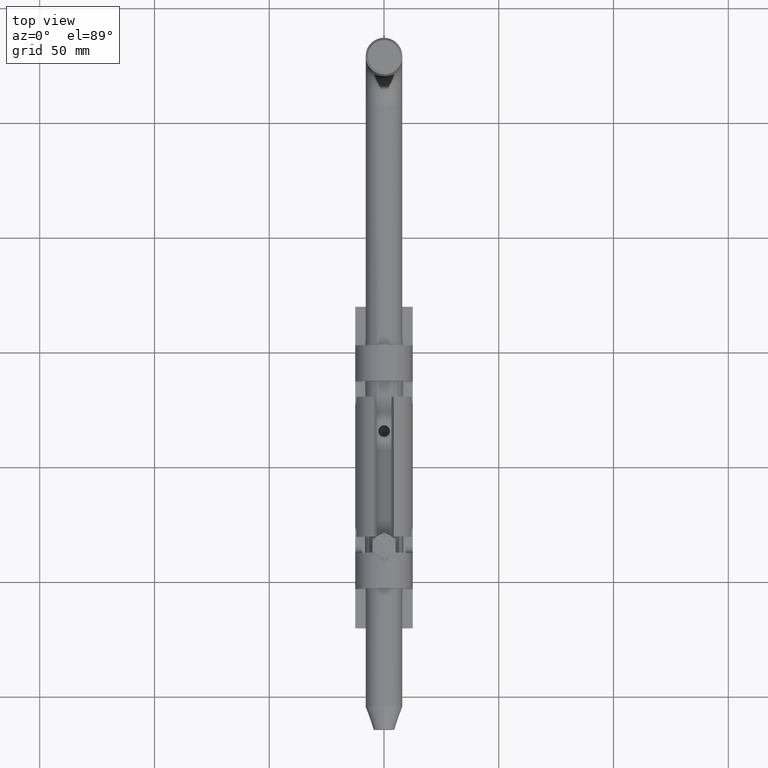
[diagram: clean part render]
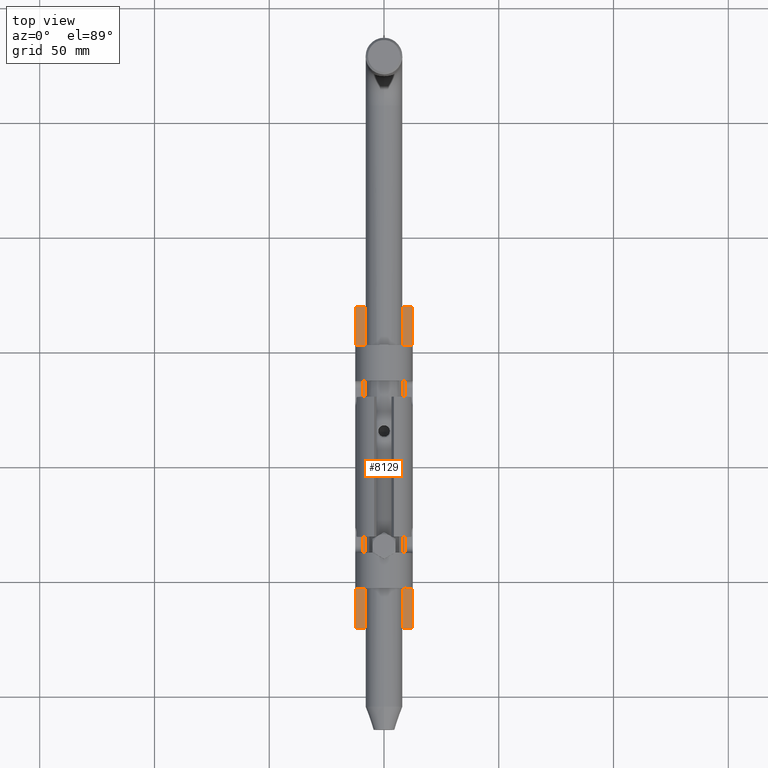
[diagram: same view with one face highlighted and labeled with its STEP entity id]
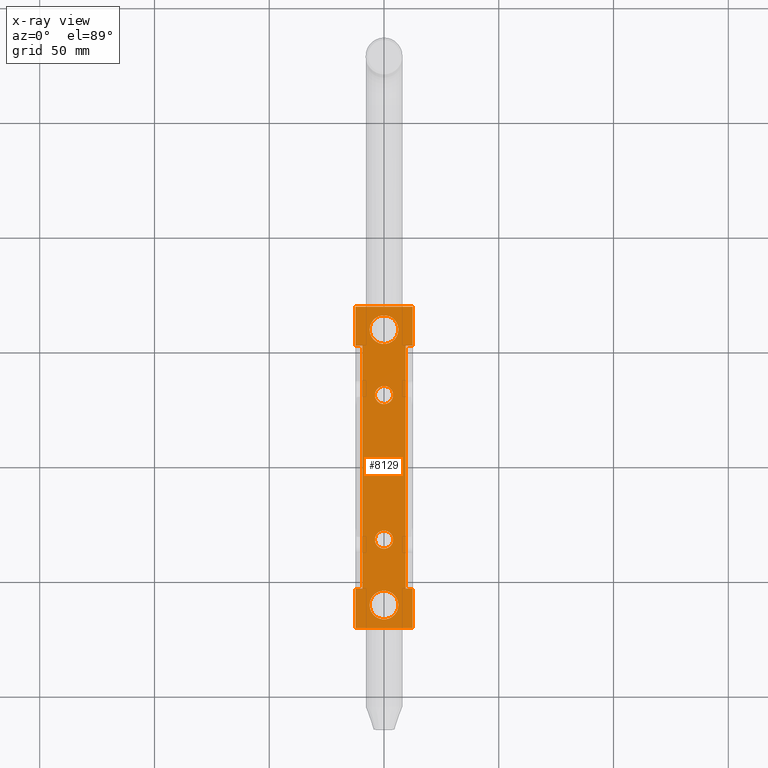
[diagram: x-ray of the same camera — body ghosted, the highlighted face saturated]
A machine part, top view. The second image highlights one B-rep face of the part: STEP entity #8129.
The next image is the same camera in x-ray: the body ghosted, the highlighted face saturated — about 0% of this face is hidden behind the body in this view.
In plain terms, the highlighted planar face has unit normal (0, 0, 1).
Its self-contained STEP definition (entity closure, byte-faithful):
#146 = EDGE_CURVE ( 'NONE', #6665, #9066, #6871, .T. ) ;
#241 = DIRECTION ( 'NONE',  ( 1.000000000000000000, 0.000000000000000000, 0.000000000000000000 ) ) ;
#262 = ORIENTED_EDGE ( 'NONE', *, *, #9063, .T. ) ;
#285 = AXIS2_PLACEMENT_3D ( 'NONE', #21432, #4945, #14725 ) ;
#367 = ORIENTED_EDGE ( 'NONE', *, *, #1174, .T. ) ;
#377 = EDGE_LOOP ( 'NONE', ( #18042, #367 ) ) ;
#427 = EDGE_CURVE ( 'NONE', #3274, #6665, #12328, .T. ) ;
#700 = ORIENTED_EDGE ( 'NONE', *, *, #17880, .F. ) ;
#1060 = DIRECTION ( 'NONE',  ( 0.000000000000000000, -1.000000000000000000, 0.000000000000000000 ) ) ;
#1115 = CARTESIAN_POINT ( 'NONE',  ( -12.50000000000001066, 70.00000000000000000, 2.000000000000000000 ) ) ;
#1174 = EDGE_CURVE ( 'NONE', #9998, #4254, #10496, .T. ) ;
#1187 = VERTEX_POINT ( 'NONE', #10945 ) ;
#1198 = EDGE_CURVE ( 'NONE', #7573, #4545, #8168, .T. ) ;
#1331 = CARTESIAN_POINT ( 'NONE',  ( -9.500000000000012434, 0.000000000000000000, 2.000000000000000000 ) ) ;
#1430 = DIRECTION ( 'NONE',  ( -1.239088197126290570E-16, 1.000000000000000000, -0.000000000000000000 ) ) ;
#1439 = VECTOR ( 'NONE', #3892, 1000.000000000000000 ) ;
#1532 = ORIENTED_EDGE ( 'NONE', *, *, #1198, .T. ) ;
#1754 = ORIENTED_EDGE ( 'NONE', *, *, #6185, .T. ) ;
#1790 = DIRECTION ( 'NONE',  ( 1.000000000000000000, 0.000000000000000000, 0.000000000000000000 ) ) ;
#1986 = CARTESIAN_POINT ( 'NONE',  ( -12.49999999999999467, -52.99999999999999289, 2.000000000000000000 ) ) ;
#2035 = VECTOR ( 'NONE', #9616, 1000.000000000000000 ) ;
#2084 = VERTEX_POINT ( 'NONE', #5402 ) ;
#2108 = AXIS2_PLACEMENT_3D ( 'NONE', #5592, #13924, #241 ) ;
#2171 = CIRCLE ( 'NONE', #10592, 6.250000000000000000 ) ;
#2241 = FACE_BOUND ( 'NONE', #6705, .T. ) ;
#2245 = VERTEX_POINT ( 'NONE', #7766 ) ;
#2267 = CARTESIAN_POINT ( 'NONE',  ( 0.000000000000000000, 31.50000000000000000, 2.000000000000000000 ) ) ;
#2645 = EDGE_CURVE ( 'NONE', #17602, #11563, #20807, .T. ) ;
#2684 = ORIENTED_EDGE ( 'NONE', *, *, #2862, .F. ) ;
#2783 = CARTESIAN_POINT ( 'NONE',  ( 12.50000000000000711, -70.00000000000000000, 2.000000000000000000 ) ) ;
#2789 = VERTEX_POINT ( 'NONE', #17837 ) ;
#2795 = LINE ( 'NONE', #19517, #2035 ) ;
#2862 = EDGE_CURVE ( 'NONE', #2084, #2789, #2171, .T. ) ;
#3175 = ORIENTED_EDGE ( 'NONE', *, *, #7008, .T. ) ;
#3192 = CARTESIAN_POINT ( 'NONE',  ( 12.49999999999999112, 70.00000000000000000, 2.000000000000000000 ) ) ;
#3274 = VERTEX_POINT ( 'NONE', #1986 ) ;
#3373 = EDGE_CURVE ( 'NONE', #5078, #12057, #4507, .T. ) ;
#3392 = CIRCLE ( 'NONE', #11489, 3.949999999999993516 ) ;
#3668 = VECTOR ( 'NONE', #9359, 1000.000000000000000 ) ;
#3762 = VECTOR ( 'NONE', #1060, 1000.000000000000000 ) ;
#3892 = DIRECTION ( 'NONE',  ( -1.000000000000000000, 0.000000000000000000, -0.000000000000000000 ) ) ;
#3961 = CARTESIAN_POINT ( 'NONE',  ( 0.000000000000000000, 53.00000000000000000, 2.000000000000000000 ) ) ;
#3995 = EDGE_CURVE ( 'NONE', #4254, #9998, #10340, .T. ) ;
#4027 = LINE ( 'NONE', #21082, #16947 ) ;
#4254 = VERTEX_POINT ( 'NONE', #16933 ) ;
#4255 = CARTESIAN_POINT ( 'NONE',  ( -12.50000000000001066, 70.00000000000000000, 2.000000000000000000 ) ) ;
#4366 = DIRECTION ( 'NONE',  ( 1.000000000000000000, 0.000000000000000000, 0.000000000000000000 ) ) ;
#4507 = CIRCLE ( 'NONE', #5127, 3.949999999999993516 ) ;
#4545 = VERTEX_POINT ( 'NONE', #17725 ) ;
#4732 = VECTOR ( 'NONE', #7353, 1000.000000000000000 ) ;
#4945 = DIRECTION ( 'NONE',  ( 0.000000000000000000, -0.000000000000000000, -1.000000000000000000 ) ) ;
#5078 = VERTEX_POINT ( 'NONE', #14424 ) ;
#5127 = AXIS2_PLACEMENT_3D ( 'NONE', #2267, #8918, #5810 ) ;
#5242 = LINE ( 'NONE', #4255, #10682 ) ;
#5402 = CARTESIAN_POINT ( 'NONE',  ( -6.250000000000000000, 60.00000000000000000, 2.000000000000000888 ) ) ;
#5592 = CARTESIAN_POINT ( 'NONE',  ( 0.000000000000000000, -60.00000000000000000, 2.000000000000000888 ) ) ;
#5597 = VECTOR ( 'NONE', #20181, 1000.000000000000000 ) ;
#5628 = VECTOR ( 'NONE', #8067, 1000.000000000000000 ) ;
#5632 = ORIENTED_EDGE ( 'NONE', *, *, #2645, .T. ) ;
#5647 = EDGE_CURVE ( 'NONE', #2245, #18710, #2795, .T. ) ;
#5810 = DIRECTION ( 'NONE',  ( 1.000000000000000000, 0.000000000000000000, 0.000000000000000000 ) ) ;
#5943 = DIRECTION ( 'NONE',  ( 1.239088197126290570E-16, -1.000000000000000000, 0.000000000000000000 ) ) ;
#5974 = DIRECTION ( 'NONE',  ( 1.000000000000000000, 0.000000000000000000, 0.000000000000000000 ) ) ;
#6185 = EDGE_CURVE ( 'NONE', #8229, #14675, #7693, .T. ) ;
#6279 = LINE ( 'NONE', #17266, #4732 ) ;
#6515 = EDGE_LOOP ( 'NONE', ( #15714, #2684 ) ) ;
#6646 = FACE_BOUND ( 'NONE', #6515, .T. ) ;
#6665 = VERTEX_POINT ( 'NONE', #20153 ) ;
#6705 = EDGE_LOOP ( 'NONE', ( #700, #20945 ) ) ;
#6871 = LINE ( 'NONE', #11956, #5597 ) ;
#7008 = EDGE_CURVE ( 'NONE', #14675, #19465, #14444, .T. ) ;
#7353 = DIRECTION ( 'NONE',  ( -1.000000000000000000, 0.000000000000000000, -0.000000000000000000 ) ) ;
#7403 = FACE_BOUND ( 'NONE', #10662, .T. ) ;
#7554 = DIRECTION ( 'NONE',  ( -0.000000000000000000, 0.000000000000000000, 1.000000000000000000 ) ) ;
#7573 = VERTEX_POINT ( 'NONE', #20605 ) ;
#7693 = LINE ( 'NONE', #9374, #15728 ) ;
#7713 = AXIS2_PLACEMENT_3D ( 'NONE', #8352, #15085, #1790 ) ;
#7766 = CARTESIAN_POINT ( 'NONE',  ( 12.49999999999999112, 53.00000000000000000, 2.000000000000000000 ) ) ;
#8067 = DIRECTION ( 'NONE',  ( 0.000000000000000000, 1.000000000000000000, 0.000000000000000000 ) ) ;
#8129 = ADVANCED_FACE ( 'NONE', ( #11056, #7403, #6646, #2241, #21136 ), #17473, .T. ) ;
#8168 = LINE ( 'NONE', #1331, #3762 ) ;
#8229 = VERTEX_POINT ( 'NONE', #19491 ) ;
#8258 = CARTESIAN_POINT ( 'NONE',  ( 6.250000000000000000, -60.00000000000000000, 2.000000000000000888 ) ) ;
#8352 = CARTESIAN_POINT ( 'NONE',  ( 0.000000000000000000, -60.00000000000000000, 2.000000000000000888 ) ) ;
#8918 = DIRECTION ( 'NONE',  ( 0.000000000000000000, -0.000000000000000000, -1.000000000000000000 ) ) ;
#9063 = EDGE_CURVE ( 'NONE', #9066, #8229, #4027, .T. ) ;
#9066 = VERTEX_POINT ( 'NONE', #2783 ) ;
#9121 = DIRECTION ( 'NONE',  ( 0.000000000000000000, -0.000000000000000000, -1.000000000000000000 ) ) ;
#9359 = DIRECTION ( 'NONE',  ( -1.000000000000000000, 0.000000000000000000, -0.000000000000000000 ) ) ;
#9374 = CARTESIAN_POINT ( 'NONE',  ( 0.000000000000000000, -53.00000000000000000, 2.000000000000000000 ) ) ;
#9435 = CARTESIAN_POINT ( 'NONE',  ( 0.000000000000000000, -53.00000000000000000, 2.000000000000000000 ) ) ;
#9616 = DIRECTION ( 'NONE',  ( -1.239088197126290570E-16, 1.000000000000000000, -0.000000000000000000 ) ) ;
#9704 = EDGE_LOOP ( 'NONE', ( #11218, #17212, #18332, #5632, #13044, #1532, #14094, #15878, #17771, #262, #1754, #3175 ) ) ;
#9853 = EDGE_CURVE ( 'NONE', #2245, #19465, #10220, .T. ) ;
#9893 = CARTESIAN_POINT ( 'NONE',  ( -3.949999999999993516, -31.50000000000000000, 2.000000000000000000 ) ) ;
#9998 = VERTEX_POINT ( 'NONE', #9893 ) ;
#10220 = LINE ( 'NONE', #3961, #1439 ) ;
#10340 = CIRCLE ( 'NONE', #285, 3.949999999999993516 ) ;
#10496 = CIRCLE ( 'NONE', #16546, 3.949999999999993516 ) ;
#10592 = AXIS2_PLACEMENT_3D ( 'NONE', #13225, #21375, #11492 ) ;
#10662 = EDGE_LOOP ( 'NONE', ( #17145, #13365 ) ) ;
#10682 = VECTOR ( 'NONE', #10693, 1000.000000000000000 ) ;
#10693 = DIRECTION ( 'NONE',  ( -1.000000000000000000, -0.000000000000000000, -0.000000000000000000 ) ) ;
#10761 = EDGE_CURVE ( 'NONE', #1187, #20117, #15897, .T. ) ;
#10945 = CARTESIAN_POINT ( 'NONE',  ( -6.250000000000000000, -60.00000000000000000, 2.000000000000000888 ) ) ;
#11056 = FACE_BOUND ( 'NONE', #377, .T. ) ;
#11126 = DIRECTION ( 'NONE',  ( 1.000000000000000000, 0.000000000000000000, 0.000000000000000000 ) ) ;
#11218 = ORIENTED_EDGE ( 'NONE', *, *, #9853, .F. ) ;
#11489 = AXIS2_PLACEMENT_3D ( 'NONE', #15813, #17620, #11126 ) ;
#11492 = DIRECTION ( 'NONE',  ( 1.000000000000000000, 0.000000000000000000, 0.000000000000000000 ) ) ;
#11537 = AXIS2_PLACEMENT_3D ( 'NONE', #17252, #7554, #5974 ) ;
#11563 = VERTEX_POINT ( 'NONE', #18461 ) ;
#11814 = VECTOR ( 'NONE', #5943, 1000.000000000000000 ) ;
#11956 = CARTESIAN_POINT ( 'NONE',  ( -12.49999999999999289, -70.00000000000000000, 2.000000000000000000 ) ) ;
#12057 = VERTEX_POINT ( 'NONE', #19106 ) ;
#12234 = LINE ( 'NONE', #9435, #3668 ) ;
#12328 = LINE ( 'NONE', #1115, #11814 ) ;
#12928 = CARTESIAN_POINT ( 'NONE',  ( 0.000000000000000000, 60.00000000000000000, 2.000000000000000888 ) ) ;
#12990 = EDGE_CURVE ( 'NONE', #4545, #3274, #12234, .T. ) ;
#13044 = ORIENTED_EDGE ( 'NONE', *, *, #17626, .F. ) ;
#13225 = CARTESIAN_POINT ( 'NONE',  ( 0.000000000000000000, 60.00000000000000000, 2.000000000000000888 ) ) ;
#13355 = CARTESIAN_POINT ( 'NONE',  ( 9.500000000000003553, 0.000000000000000000, 2.000000000000000000 ) ) ;
#13365 = ORIENTED_EDGE ( 'NONE', *, *, #19030, .T. ) ;
#13813 = DIRECTION ( 'NONE',  ( 1.239088197126290570E-16, -1.000000000000000000, 0.000000000000000000 ) ) ;
#13924 = DIRECTION ( 'NONE',  ( -0.000000000000000000, -0.000000000000000000, 1.000000000000000000 ) ) ;
#14094 = ORIENTED_EDGE ( 'NONE', *, *, #12990, .T. ) ;
#14424 = CARTESIAN_POINT ( 'NONE',  ( 3.949999999999993516, 31.50000000000000000, 2.000000000000000000 ) ) ;
#14444 = LINE ( 'NONE', #13355, #5628 ) ;
#14675 = VERTEX_POINT ( 'NONE', #21118 ) ;
#14725 = DIRECTION ( 'NONE',  ( 1.000000000000000000, 0.000000000000000000, 0.000000000000000000 ) ) ;
#15085 = DIRECTION ( 'NONE',  ( -0.000000000000000000, -0.000000000000000000, 1.000000000000000000 ) ) ;
#15087 = CARTESIAN_POINT ( 'NONE',  ( 9.500000000000003553, 53.00000000000000000, 2.000000000000000000 ) ) ;
#15385 = CARTESIAN_POINT ( 'NONE',  ( -12.50000000000001066, 70.00000000000000000, 2.000000000000000000 ) ) ;
#15714 = ORIENTED_EDGE ( 'NONE', *, *, #21150, .F. ) ;
#15728 = VECTOR ( 'NONE', #21167, 1000.000000000000000 ) ;
#15741 = CARTESIAN_POINT ( 'NONE',  ( -12.50000000000001066, 70.00000000000000000, 2.000000000000000000 ) ) ;
#15813 = CARTESIAN_POINT ( 'NONE',  ( 0.000000000000000000, 31.50000000000000000, 2.000000000000000000 ) ) ;
#15878 = ORIENTED_EDGE ( 'NONE', *, *, #427, .T. ) ;
#15897 = CIRCLE ( 'NONE', #2108, 6.250000000000000000 ) ;
#16546 = AXIS2_PLACEMENT_3D ( 'NONE', #19258, #9121, #4366 ) ;
#16933 = CARTESIAN_POINT ( 'NONE',  ( 3.949999999999993516, -31.50000000000000000, 2.000000000000000000 ) ) ;
#16947 = VECTOR ( 'NONE', #1430, 1000.000000000000000 ) ;
#17145 = ORIENTED_EDGE ( 'NONE', *, *, #3373, .T. ) ;
#17212 = ORIENTED_EDGE ( 'NONE', *, *, #5647, .T. ) ;
#17252 = CARTESIAN_POINT ( 'NONE',  ( 0.000000000000000000, 0.000000000000000000, 2.000000000000000000 ) ) ;
#17266 = CARTESIAN_POINT ( 'NONE',  ( 0.000000000000000000, 53.00000000000000000, 2.000000000000000000 ) ) ;
#17400 = CIRCLE ( 'NONE', #7713, 6.250000000000000000 ) ;
#17446 = VECTOR ( 'NONE', #13813, 1000.000000000000000 ) ;
#17473 = PLANE ( 'NONE',  #11537 ) ;
#17596 = EDGE_CURVE ( 'NONE', #18710, #17602, #5242, .T. ) ;
#17602 = VERTEX_POINT ( 'NONE', #15741 ) ;
#17620 = DIRECTION ( 'NONE',  ( 0.000000000000000000, -0.000000000000000000, -1.000000000000000000 ) ) ;
#17626 = EDGE_CURVE ( 'NONE', #7573, #11563, #6279, .T. ) ;
#17725 = CARTESIAN_POINT ( 'NONE',  ( -9.500000000000012434, -53.00000000000000000, 2.000000000000000000 ) ) ;
#17771 = ORIENTED_EDGE ( 'NONE', *, *, #146, .T. ) ;
#17837 = CARTESIAN_POINT ( 'NONE',  ( 6.250000000000000000, 60.00000000000000000, 2.000000000000000888 ) ) ;
#17880 = EDGE_CURVE ( 'NONE', #20117, #1187, #17400, .T. ) ;
#17898 = DIRECTION ( 'NONE',  ( -0.000000000000000000, -0.000000000000000000, 1.000000000000000000 ) ) ;
#18042 = ORIENTED_EDGE ( 'NONE', *, *, #3995, .T. ) ;
#18332 = ORIENTED_EDGE ( 'NONE', *, *, #17596, .T. ) ;
#18461 = CARTESIAN_POINT ( 'NONE',  ( -12.50000000000001066, 53.00000000000000000, 2.000000000000000000 ) ) ;
#18710 = VERTEX_POINT ( 'NONE', #3192 ) ;
#19030 = EDGE_CURVE ( 'NONE', #12057, #5078, #3392, .T. ) ;
#19106 = CARTESIAN_POINT ( 'NONE',  ( -3.949999999999993516, 31.50000000000000000, 2.000000000000000000 ) ) ;
#19258 = CARTESIAN_POINT ( 'NONE',  ( 0.000000000000000000, -31.50000000000000000, 2.000000000000000000 ) ) ;
#19465 = VERTEX_POINT ( 'NONE', #15087 ) ;
#19491 = CARTESIAN_POINT ( 'NONE',  ( 12.49999999999999112, -53.00000000000000000, 2.000000000000000000 ) ) ;
#19517 = CARTESIAN_POINT ( 'NONE',  ( 12.49999999999999112, 70.00000000000000000, 2.000000000000000000 ) ) ;
#20117 = VERTEX_POINT ( 'NONE', #8258 ) ;
#20153 = CARTESIAN_POINT ( 'NONE',  ( -12.49999999999999289, -70.00000000000000000, 2.000000000000000000 ) ) ;
#20181 = DIRECTION ( 'NONE',  ( 1.000000000000000000, 0.000000000000000000, 0.000000000000000000 ) ) ;
#20421 = CIRCLE ( 'NONE', #20704, 6.250000000000000000 ) ;
#20605 = CARTESIAN_POINT ( 'NONE',  ( -9.500000000000012434, 53.00000000000000000, 2.000000000000000000 ) ) ;
#20704 = AXIS2_PLACEMENT_3D ( 'NONE', #12928, #17898, #21223 ) ;
#20807 = LINE ( 'NONE', #15385, #17446 ) ;
#20945 = ORIENTED_EDGE ( 'NONE', *, *, #10761, .F. ) ;
#21082 = CARTESIAN_POINT ( 'NONE',  ( 12.49999999999999112, 70.00000000000000000, 2.000000000000000000 ) ) ;
#21118 = CARTESIAN_POINT ( 'NONE',  ( 9.500000000000005329, -53.00000000000000000, 2.000000000000000000 ) ) ;
#21136 = FACE_OUTER_BOUND ( 'NONE', #9704, .T. ) ;
#21150 = EDGE_CURVE ( 'NONE', #2789, #2084, #20421, .T. ) ;
#21167 = DIRECTION ( 'NONE',  ( -1.000000000000000000, 0.000000000000000000, -0.000000000000000000 ) ) ;
#21223 = DIRECTION ( 'NONE',  ( 1.000000000000000000, 0.000000000000000000, 0.000000000000000000 ) ) ;
#21375 = DIRECTION ( 'NONE',  ( -0.000000000000000000, -0.000000000000000000, 1.000000000000000000 ) ) ;
#21432 = CARTESIAN_POINT ( 'NONE',  ( 0.000000000000000000, -31.50000000000000000, 2.000000000000000000 ) ) ;